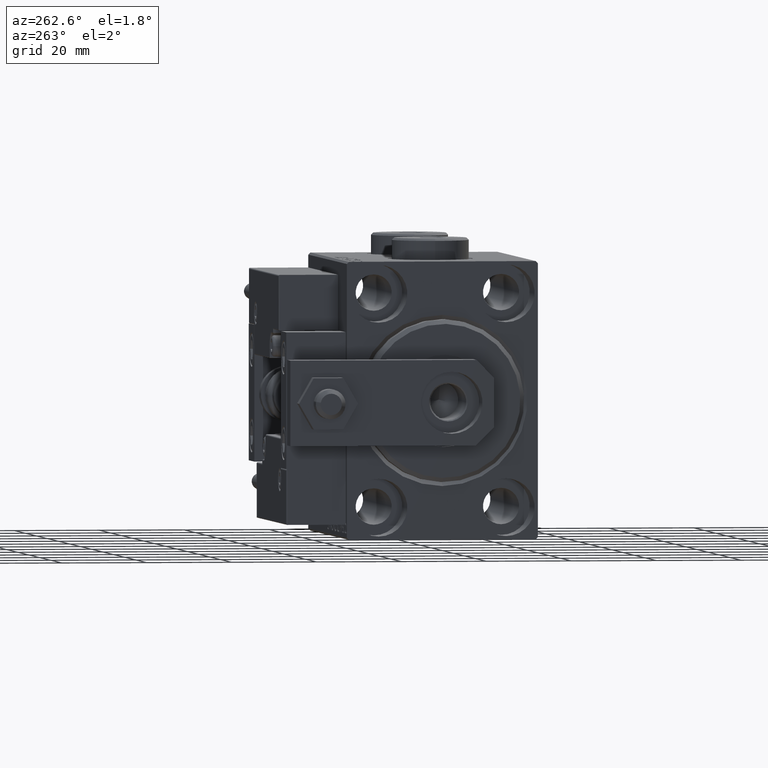
[diagram: clean part render]
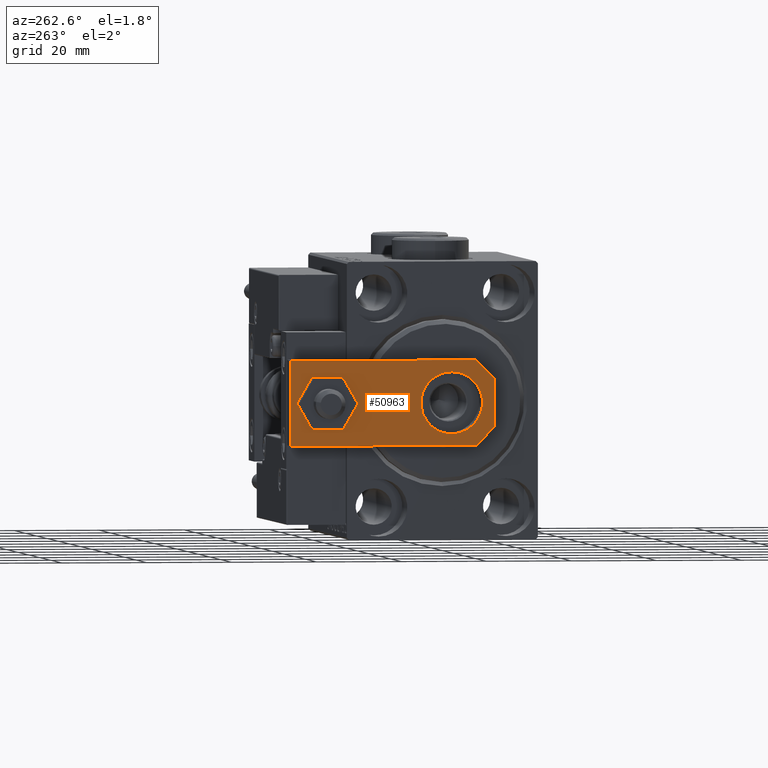
[diagram: same view with one face highlighted and labeled with its STEP entity id]
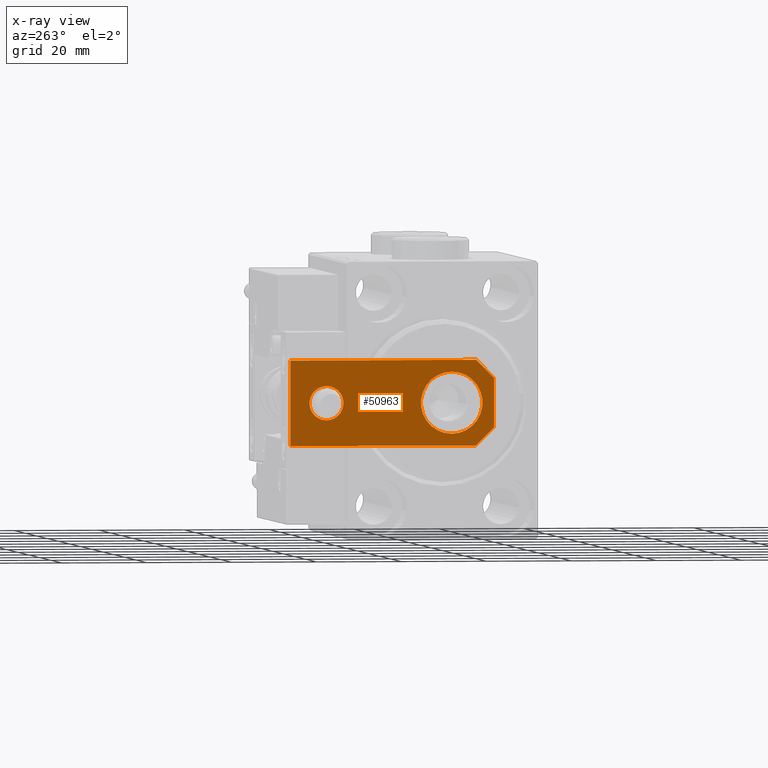
[diagram: x-ray of the same camera — body ghosted, the highlighted face saturated]
A machine part, auxiliary view. The second image highlights one B-rep face of the part: STEP entity #50963.
The next image is the same camera in x-ray: the body ghosted, the highlighted face saturated — about 0% of this face is hidden behind the body in this view.
In plain terms, the highlighted planar face has unit normal (-1, 0, 0).
Its self-contained STEP definition (entity closure, byte-faithful):
#271 = CARTESIAN_POINT ( 'NONE',  ( -10.00000000000000533, 4.240000000000021529, 6.000000000000000000 ) ) ;
#1952 = VECTOR ( 'NONE', #20276, 1000.000000000000114 ) ;
#2009 = LINE ( 'NONE', #29624, #22458 ) ;
#2231 = DIRECTION ( 'NONE',  ( 0.000000000000000000, 0.000000000000000000, 1.000000000000000000 ) ) ;
#2744 = CARTESIAN_POINT ( 'NONE',  ( -7.250000000000000000, 10.00000000000000178, 6.000000000000000000 ) ) ;
#3024 = DIRECTION ( 'NONE',  ( 0.000000000000000000, 0.000000000000000000, 1.000000000000000000 ) ) ;
#3044 = CARTESIAN_POINT ( 'NONE',  ( 4.000000000000000888, 39.50000000000000000, 6.000000000000000000 ) ) ;
#3093 = EDGE_LOOP ( 'NONE', ( #39297, #12988, #19223, #15656, #9464, #37946 ) ) ;
#3218 = CIRCLE ( 'NONE', #50656, 4.000000000000000888 ) ;
#4273 = VERTEX_POINT ( 'NONE', #29805 ) ;
#4640 = CIRCLE ( 'NONE', #23756, 4.000000000000000888 ) ;
#6154 = DIRECTION ( 'NONE',  ( 0.000000000000000000, 0.000000000000000000, 1.000000000000000000 ) ) ;
#6911 = CARTESIAN_POINT ( 'NONE',  ( -1.432611055310774642E-16, 39.50000000000000000, 6.000000000000000000 ) ) ;
#6921 = CARTESIAN_POINT ( 'NONE',  ( -1.432611055310774642E-16, 39.50000000000000000, 6.000000000000000000 ) ) ;
#7440 = EDGE_CURVE ( 'NONE', #35476, #10596, #3218, .T. ) ;
#8352 = LINE ( 'NONE', #48233, #48752 ) ;
#9464 = ORIENTED_EDGE ( 'NONE', *, *, #26006, .T. ) ;
#9532 = EDGE_CURVE ( 'NONE', #49071, #16378, #33278, .T. ) ;
#10077 = EDGE_LOOP ( 'NONE', ( #46606, #14547 ) ) ;
#10336 = EDGE_CURVE ( 'NONE', #17161, #26048, #2009, .T. ) ;
#10483 = AXIS2_PLACEMENT_3D ( 'NONE', #38928, #2231, #34776 ) ;
#10596 = VERTEX_POINT ( 'NONE', #44185 ) ;
#10710 = DIRECTION ( 'NONE',  ( 1.000000000000000000, 0.000000000000000000, 0.000000000000000000 ) ) ;
#10888 = DIRECTION ( 'NONE',  ( -0.000000000000000000, 0.000000000000000000, 1.000000000000000000 ) ) ;
#11774 = CARTESIAN_POINT ( 'NONE',  ( 10.00000000000000178, 48.00000000000000000, 6.000000000000000000 ) ) ;
#11845 = DIRECTION ( 'NONE',  ( 1.000000000000000000, 0.000000000000000000, 0.000000000000000000 ) ) ;
#11946 = LINE ( 'NONE', #24704, #1952 ) ;
#12607 = LINE ( 'NONE', #40491, #41268 ) ;
#12757 = DIRECTION ( 'NONE',  ( -7.228014483236695816E-17, 1.000000000000000000, 0.000000000000000000 ) ) ;
#12876 = LINE ( 'NONE', #15999, #32147 ) ;
#12988 = ORIENTED_EDGE ( 'NONE', *, *, #49114, .T. ) ;
#13720 = DIRECTION ( 'NONE',  ( -1.084202172485504434E-16, -1.000000000000000000, 0.000000000000000000 ) ) ;
#14320 = EDGE_LOOP ( 'NONE', ( #45991, #32977 ) ) ;
#14547 = ORIENTED_EDGE ( 'NONE', *, *, #7440, .F. ) ;
#14889 = CARTESIAN_POINT ( 'NONE',  ( 5.759999999999998010, 0.000000000000000000, 6.000000000000000000 ) ) ;
#15656 = ORIENTED_EDGE ( 'NONE', *, *, #39924, .T. ) ;
#15999 = CARTESIAN_POINT ( 'NONE',  ( -10.00000000000000533, 0.000000000000000000, 6.000000000000000000 ) ) ;
#16378 = VERTEX_POINT ( 'NONE', #42025 ) ;
#16424 = VERTEX_POINT ( 'NONE', #11774 ) ;
#16937 = DIRECTION ( 'NONE',  ( -1.000000000000000000, 0.000000000000000000, 0.000000000000000000 ) ) ;
#17161 = VERTEX_POINT ( 'NONE', #28564 ) ;
#18700 = FACE_BOUND ( 'NONE', #10077, .T. ) ;
#18809 = CIRCLE ( 'NONE', #10483, 7.250000000000000000 ) ;
#19138 = VERTEX_POINT ( 'NONE', #35119 ) ;
#19223 = ORIENTED_EDGE ( 'NONE', *, *, #50190, .T. ) ;
#19381 = VECTOR ( 'NONE', #16937, 1000.000000000000000 ) ;
#19678 = AXIS2_PLACEMENT_3D ( 'NONE', #22347, #10888, #34608 ) ;
#20276 = DIRECTION ( 'NONE',  ( 0.7071067811865492381, 0.7071067811865457964, -0.000000000000000000 ) ) ;
#20854 = LINE ( 'NONE', #45354, #19381 ) ;
#22097 = FACE_OUTER_BOUND ( 'NONE', #3093, .T. ) ;
#22347 = CARTESIAN_POINT ( 'NONE',  ( 0.000000000000000000, 0.000000000000000000, 6.000000000000000000 ) ) ;
#22458 = VECTOR ( 'NONE', #13720, 1000.000000000000000 ) ;
#22787 = DIRECTION ( 'NONE',  ( 1.000000000000000000, 0.000000000000000000, 0.000000000000000000 ) ) ;
#23756 = AXIS2_PLACEMENT_3D ( 'NONE', #6921, #3024, #22787 ) ;
#24704 = CARTESIAN_POINT ( 'NONE',  ( 2.879999999999984350, -2.879999999999999005, 6.000000000000000000 ) ) ;
#26006 = EDGE_CURVE ( 'NONE', #4273, #16424, #8352, .T. ) ;
#26048 = VERTEX_POINT ( 'NONE', #271 ) ;
#26187 = DIRECTION ( 'NONE',  ( 1.000000000000000000, 0.000000000000000000, 0.000000000000000000 ) ) ;
#26520 = FACE_BOUND ( 'NONE', #14320, .T. ) ;
#28564 = CARTESIAN_POINT ( 'NONE',  ( -10.00000000000000000, 48.00000000000000000, 6.000000000000000000 ) ) ;
#29624 = CARTESIAN_POINT ( 'NONE',  ( -10.00000000000000000, 48.00000000000000000, 6.000000000000000000 ) ) ;
#29805 = CARTESIAN_POINT ( 'NONE',  ( 10.00000000000000533, 4.239999999999986890, 6.000000000000000000 ) ) ;
#29996 = CARTESIAN_POINT ( 'NONE',  ( -9.629649721936179265E-32, 10.00000000000000178, 6.000000000000000000 ) ) ;
#31066 = EDGE_CURVE ( 'NONE', #16378, #49071, #18809, .T. ) ;
#32147 = VECTOR ( 'NONE', #11845, 1000.000000000000000 ) ;
#32977 = ORIENTED_EDGE ( 'NONE', *, *, #31066, .F. ) ;
#33278 = CIRCLE ( 'NONE', #50728, 7.250000000000000000 ) ;
#33847 = PLANE ( 'NONE',  #19678 ) ;
#34608 = DIRECTION ( 'NONE',  ( 1.000000000000000000, 0.000000000000000000, 0.000000000000000000 ) ) ;
#34776 = DIRECTION ( 'NONE',  ( 1.000000000000000000, 0.000000000000000000, 0.000000000000000000 ) ) ;
#35119 = CARTESIAN_POINT ( 'NONE',  ( -5.759999999999997122, 0.000000000000000000, 6.000000000000000000 ) ) ;
#35476 = VERTEX_POINT ( 'NONE', #3044 ) ;
#37946 = ORIENTED_EDGE ( 'NONE', *, *, #38884, .T. ) ;
#38326 = DIRECTION ( 'NONE',  ( 0.000000000000000000, 0.000000000000000000, 1.000000000000000000 ) ) ;
#38884 = EDGE_CURVE ( 'NONE', #16424, #17161, #20854, .T. ) ;
#38928 = CARTESIAN_POINT ( 'NONE',  ( -9.629649721936179265E-32, 10.00000000000000178, 6.000000000000000000 ) ) ;
#39297 = ORIENTED_EDGE ( 'NONE', *, *, #10336, .T. ) ;
#39709 = DIRECTION ( 'NONE',  ( 0.7071067811865464625, -0.7071067811865486830, 0.000000000000000000 ) ) ;
#39924 = EDGE_CURVE ( 'NONE', #46375, #4273, #11946, .T. ) ;
#40491 = CARTESIAN_POINT ( 'NONE',  ( -2.880000000000006999, -2.879999999999998561, 6.000000000000000000 ) ) ;
#41268 = VECTOR ( 'NONE', #39709, 999.9999999999998863 ) ;
#42025 = CARTESIAN_POINT ( 'NONE',  ( 7.250000000000000000, 10.00000000000000355, 6.000000000000000000 ) ) ;
#44185 = CARTESIAN_POINT ( 'NONE',  ( -4.000000000000000888, 39.50000000000000000, 6.000000000000000000 ) ) ;
#44836 = EDGE_CURVE ( 'NONE', #10596, #35476, #4640, .T. ) ;
#45354 = CARTESIAN_POINT ( 'NONE',  ( 10.00000000000000178, 48.00000000000000000, 6.000000000000000000 ) ) ;
#45991 = ORIENTED_EDGE ( 'NONE', *, *, #9532, .F. ) ;
#46375 = VERTEX_POINT ( 'NONE', #14889 ) ;
#46606 = ORIENTED_EDGE ( 'NONE', *, *, #44836, .F. ) ;
#48233 = CARTESIAN_POINT ( 'NONE',  ( 10.00000000000000533, 0.000000000000000000, 6.000000000000000000 ) ) ;
#48752 = VECTOR ( 'NONE', #12757, 1000.000000000000000 ) ;
#49071 = VERTEX_POINT ( 'NONE', #2744 ) ;
#49114 = EDGE_CURVE ( 'NONE', #26048, #19138, #12607, .T. ) ;
#50190 = EDGE_CURVE ( 'NONE', #19138, #46375, #12876, .T. ) ;
#50656 = AXIS2_PLACEMENT_3D ( 'NONE', #6911, #6154, #26187 ) ;
#50728 = AXIS2_PLACEMENT_3D ( 'NONE', #29996, #38326, #10710 ) ;
#50963 = ADVANCED_FACE ( 'NONE', ( #18700, #22097, #26520 ), #33847, .T. ) ;